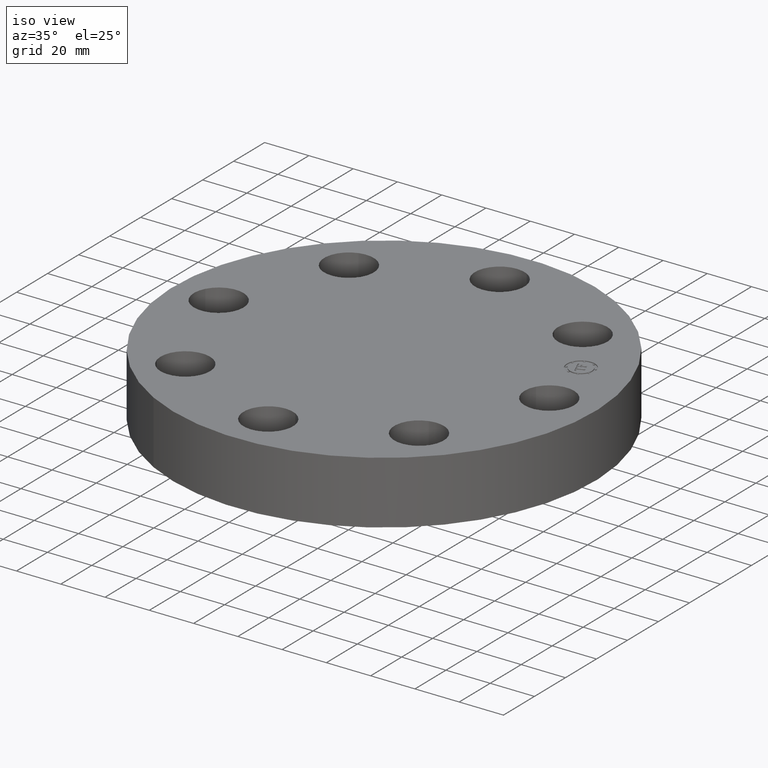
[diagram: clean part render]
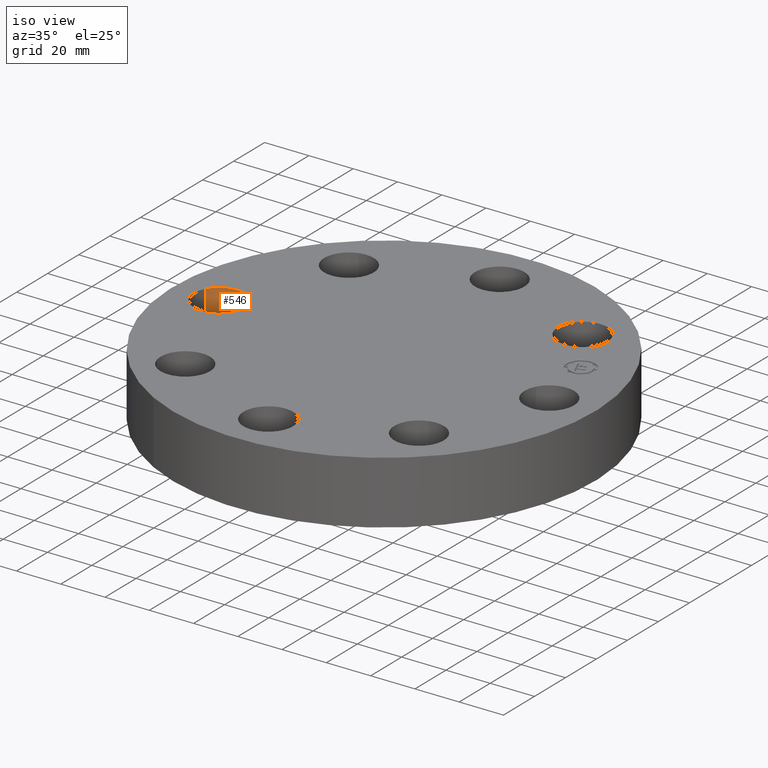
[diagram: same view with one face highlighted and labeled with its STEP entity id]
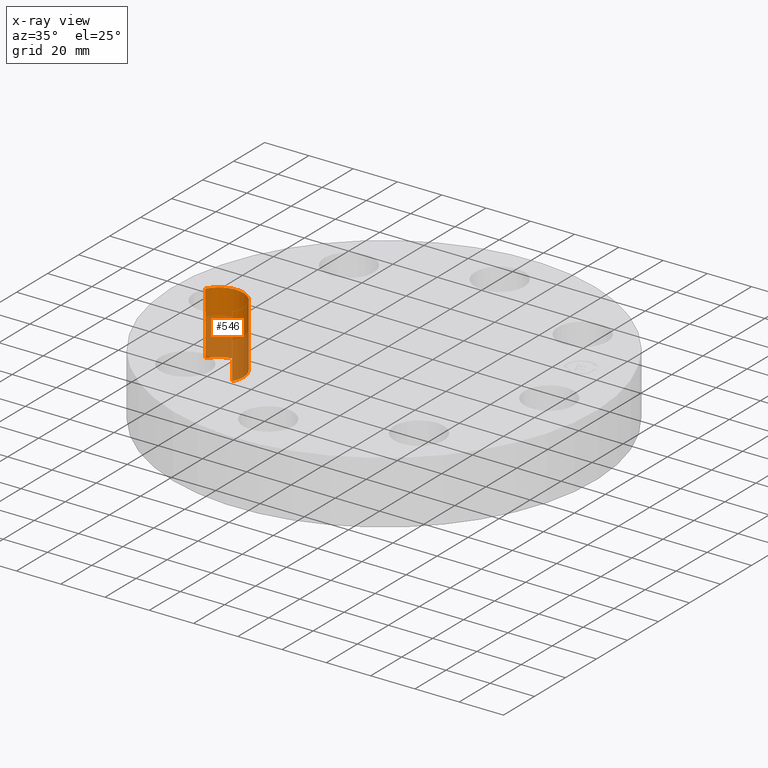
[diagram: x-ray of the same camera — body ghosted, the highlighted face saturated]
A machine part, iso view. The second image highlights one B-rep face of the part: STEP entity #546.
The next image is the same camera in x-ray: the body ghosted, the highlighted face saturated — about 54% of this face is hidden behind the body in this view.
In plain terms, the highlighted cylindrical surface (edge-blend (fillet) strip) has radius 11.176 mm, axis along (-0, 0, -1).
Its self-contained STEP definition (entity closure, byte-faithful):
#227=AXIS2_PLACEMENT_3D('Circle Axis2P3D',#225,#226,$) ;
#507=AXIS2_PLACEMENT_3D('Cylinder Axis2P3D',#504,#505,#506) ;
#537=AXIS2_PLACEMENT_3D('Circle Axis2P3D',#535,#536,$) ;
#220=CARTESIAN_POINT('Vertex',(-2.55386367278,-0.210947236987,0.)) ;
#222=CARTESIAN_POINT('Vertex',(-3.32613632725,0.210947236987,0.)) ;
#225=CARTESIAN_POINT('Axis2P3D Location',(-2.94000000001,-2.44773580232E-016,0.)) ;
#504=CARTESIAN_POINT('Axis2P3D Location',(-2.94000000001,-3.60046158951E-016,1.11606299213)) ;
#509=CARTESIAN_POINT('Line Origine',(-2.55386367278,-0.210947236987,0.560000000002)) ;
#513=CARTESIAN_POINT('Vertex',(-2.55386367278,-0.210947236987,1.12)) ;
#516=CARTESIAN_POINT('Line Origine',(-3.32613632725,0.210947236987,0.560000000002)) ;
#520=CARTESIAN_POINT('Vertex',(-3.32613632725,0.210947236987,1.12)) ;
#535=CARTESIAN_POINT('Axis2P3D Location',(-2.94000000001,-3.60046158951E-016,1.12)) ;
#226=DIRECTION('Axis2P3D Direction',(0.,0.,-0.0393700787402)) ;
#505=DIRECTION('Axis2P3D Direction',(-0.,0.,-0.0393700787402)) ;
#506=DIRECTION('Axis2P3D XDirection',(-0.0345504945626,0.0188750212049,0.)) ;
#510=DIRECTION('Vector Direction',(0.,0.,-0.0393700787402)) ;
#517=DIRECTION('Vector Direction',(0.,0.,-0.0393700787402)) ;
#536=DIRECTION('Axis2P3D Direction',(-0.,0.,-0.0393700787402)) ;
#511=VECTOR('Line Direction',#510,0.0393700787402) ;
#518=VECTOR('Line Direction',#517,0.0393700787402) ;
#541=ORIENTED_EDGE('',*,*,#522,.F.) ;
#542=ORIENTED_EDGE('',*,*,#229,.T.) ;
#543=ORIENTED_EDGE('',*,*,#515,.T.) ;
#544=ORIENTED_EDGE('',*,*,#539,.F.) ;
#546=ADVANCED_FACE('PartBody',(#545),#508,.F.) ;
#228=CIRCLE('generated circle',#227,0.440000000002) ;
#538=CIRCLE('generated circle',#537,0.440000000002) ;
#508=CYLINDRICAL_SURFACE('generated cylinder',#507,0.440000000002) ;
#229=EDGE_CURVE('',#223,#221,#228,.T.) ;
#515=EDGE_CURVE('',#221,#514,#512,.F.) ;
#522=EDGE_CURVE('',#223,#521,#519,.F.) ;
#539=EDGE_CURVE('',#521,#514,#538,.T.) ;
#540=EDGE_LOOP('',(#541,#542,#543,#544)) ;
#545=FACE_OUTER_BOUND('',#540,.T.) ;
#512=LINE('Line',#509,#511) ;
#519=LINE('Line',#516,#518) ;
#221=VERTEX_POINT('',#220) ;
#223=VERTEX_POINT('',#222) ;
#514=VERTEX_POINT('',#513) ;
#521=VERTEX_POINT('',#520) ;